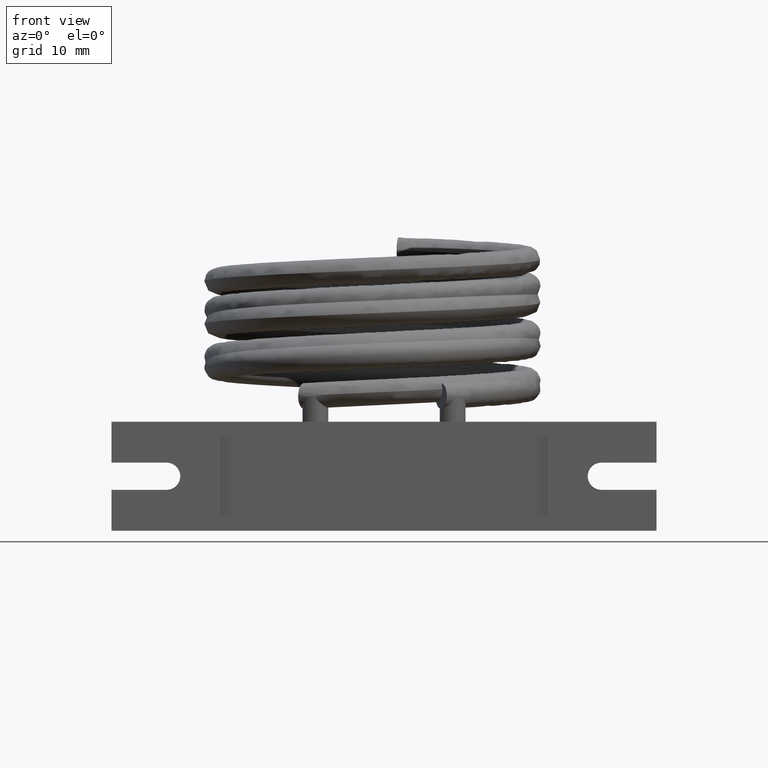
[diagram: clean part render]
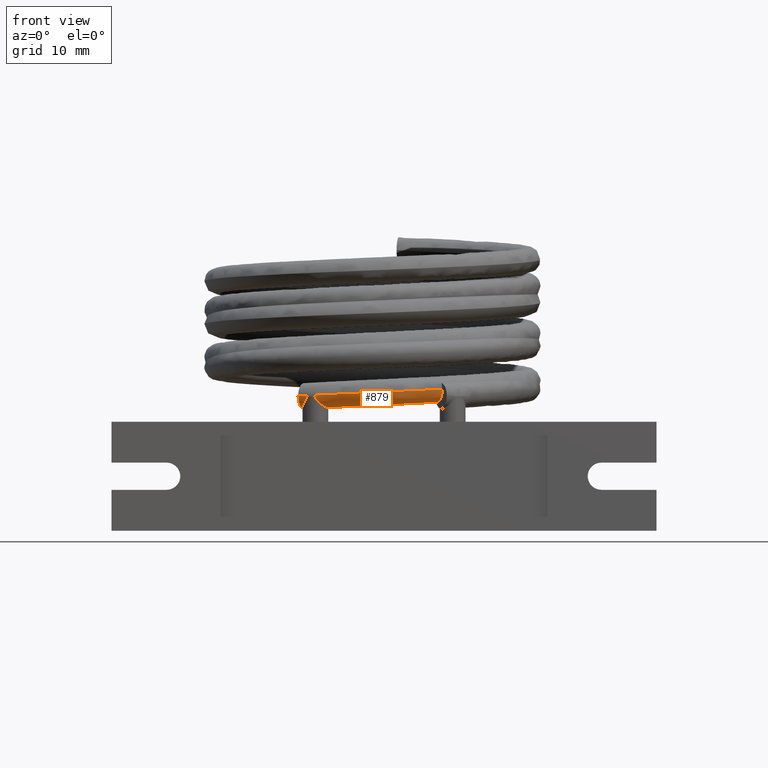
[diagram: same view with one face highlighted and labeled with its STEP entity id]
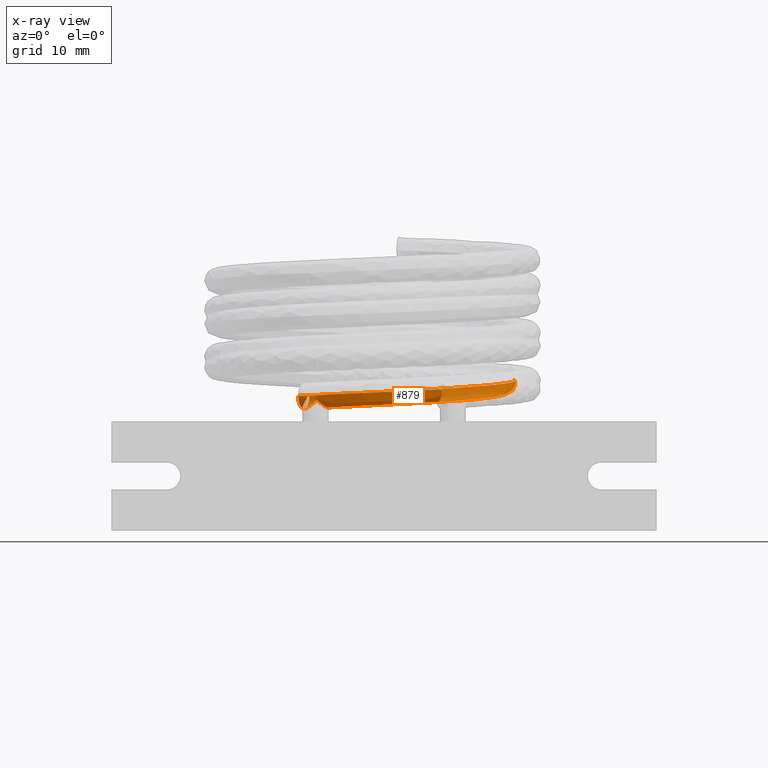
[diagram: x-ray of the same camera — body ghosted, the highlighted face saturated]
A machine part, front view. The second image highlights one B-rep face of the part: STEP entity #879.
The next image is the same camera in x-ray: the body ghosted, the highlighted face saturated — about 0% of this face is hidden behind the body in this view.
In plain terms, the highlighted face is a freeform B-spline surface patch.
Its self-contained STEP definition (entity closure, byte-faithful):
#424=CARTESIAN_POINT('',(6.796506279206343,-15.32938809717489,15.020234560224107));
#425=VERTEX_POINT('',#424);
#437=CARTESIAN_POINT('',(7.765690989006128,-14.743232657820034,15.0809614441658));
#438=VERTEX_POINT('',#437);
#439=CARTESIAN_POINT('',(7.765719428515488,-14.743408756159486,15.08113682678376));
#440=CARTESIAN_POINT('',(7.727906275917158,-14.74938806188041,15.081264615247143));
#441=CARTESIAN_POINT('',(7.690334438825691,-14.756812982539977,15.081371712685307));
#442=CARTESIAN_POINT('',(7.583600744779902,-14.782185853201053,15.081283141788777));
#443=CARTESIAN_POINT('',(7.515403886519026,-14.803638206718759,15.080724597464272));
#444=CARTESIAN_POINT('',(7.414733857348637,-14.843400160406969,15.078343835368148));
#445=CARTESIAN_POINT('',(7.381026749760976,-14.858169521719638,15.077272213209502));
#446=CARTESIAN_POINT('',(7.326326946469616,-14.884575344888978,15.075018931451824));
#447=CARTESIAN_POINT('',(7.30501746633307,-14.89549918535632,15.074007327818791));
#448=CARTESIAN_POINT('',(7.264142178989951,-14.917703943703858,15.071798441041292));
#449=CARTESIAN_POINT('',(7.244556402352882,-14.928923550793996,15.070615605704692));
#450=CARTESIAN_POINT('',(7.19947717808922,-14.956115440945881,15.067603271325678));
#451=CARTESIAN_POINT('',(7.174207335168027,-14.972414727804846,15.065690445182945));
#452=CARTESIAN_POINT('',(7.095774496546441,-15.026408065185191,15.059076859714382));
#453=CARTESIAN_POINT('',(7.044632433277044,-15.066767161114914,15.053724447746969));
#454=CARTESIAN_POINT('',(6.922598205056851,-15.17664870118907,15.039051939284318));
#455=CARTESIAN_POINT('',(6.855757395647398,-15.250055908286221,15.029124024937321));
#456=CARTESIAN_POINT('',(6.796636126300768,-15.329502714981457,15.020398353458935));
#457=B_SPLINE_CURVE_WITH_KNOTS('',3,(#439,#440,#441,#442,#443,#444,#445,#446,#447,#448,#449,#450,#451,#452,#453,#454,#455,#456),.UNSPECIFIED.,.F.,.U.,(4,2,2,2,2,2,2,2,4),(-0.116378923915823,-0.10490897436881,-0.083512592682323,-0.072488571517131,-0.065311624145937,-0.058543437829756,-0.049521266082312,-0.029960611032271,-0.000135880903341),.UNSPECIFIED.);
#458=EDGE_CURVE('',#438,#425,#457,.T.);
#541=CARTESIAN_POINT('',(-10.013475729989661,-16.904547610443771,15.699794977803982));
#542=CARTESIAN_POINT('',(-10.013475730116085,-16.904547610699996,15.699783353149797));
#543=CARTESIAN_POINT('',(-10.013477860737298,-16.904551928882206,15.307965916050971));
#544=CARTESIAN_POINT('',(-9.869855924245572,-16.613469915303646,14.524342666502553));
#545=CARTESIAN_POINT('',(-9.349762599277709,-15.559384334951606,14.037468822512553));
#546=CARTESIAN_POINT('',(-8.82966927430984,-14.50529875459317,14.524342666502553));
#547=CARTESIAN_POINT('',(-8.685988573774495,-14.214097642524294,15.308286541653533));
#548=CARTESIAN_POINT('',(-8.686049520014432,-14.21422116372587,15.700424604354916));
#549=CARTESIAN_POINT('',(-8.686049623278516,-14.214221373013659,15.700756854541682));
#550=CARTESIAN_POINT('',(-8.603376713744718,-17.59999673914583,15.770049651953125));
#551=CARTESIAN_POINT('',(-8.603376713850574,-17.599996739412202,15.770038027298941));
#552=CARTESIAN_POINT('',(-8.603378497870921,-17.600001228535856,15.378220590200113));
#553=CARTESIAN_POINT('',(-8.483120456808999,-17.297396335690266,14.594597340651696));
#554=CARTESIAN_POINT('',(-8.047634026552625,-16.201583337238098,14.107723496661695));
#555=CARTESIAN_POINT('',(-7.612147596296237,-15.105770338784501,14.594597340651696));
#556=CARTESIAN_POINT('',(-7.491840350713155,-14.803041632772105,15.378541215802674));
#557=CARTESIAN_POINT('',(-7.491891382439982,-14.803170043730489,15.770679278504058));
#558=CARTESIAN_POINT('',(-7.491891468905441,-14.803170261303222,15.771011528690824));
#559=CARTESIAN_POINT('',(-5.345798995375704,-18.745714248255446,15.923238072822279));
#560=CARTESIAN_POINT('',(-5.345798995434051,-18.745714248538526,15.923226448168096));
#561=CARTESIAN_POINT('',(-5.345799978742984,-18.745719019272258,15.531409011069266));
#562=CARTESIAN_POINT('',(-5.279516661650067,-18.424130761591574,14.747785761520849));
#563=CARTESIAN_POINT('',(-5.039487097797414,-17.259573937681367,14.26091191753085));
#564=CARTESIAN_POINT('',(-4.799457533944503,-16.095017113761671,14.747785761520849));
#565=CARTESIAN_POINT('',(-4.733147096513232,-15.77329727572147,15.531729636671828));
#566=CARTESIAN_POINT('',(-4.733175223964228,-15.773433742306556,15.923867699373211));
#567=CARTESIAN_POINT('',(-4.733175271621891,-15.773433973528316,15.924199949559977));
#568=CARTESIAN_POINT('',(-0.023009316195609,-19.148195265712175,16.159360240411434));
#569=CARTESIAN_POINT('',(-0.023009316176323,-19.148195266001125,16.159348615757249));
#570=CARTESIAN_POINT('',(-0.023008991144812,-19.148200135671907,15.76753117865842));
#571=CARTESIAN_POINT('',(-0.04491884349161,-18.81994318005,14.98390792911));
#572=CARTESIAN_POINT('',(-0.124260260524,-17.631237222860001,14.497034085120003));
#573=CARTESIAN_POINT('',(-0.2036016775513,-16.442531265669999,14.98390792911));
#574=CARTESIAN_POINT('',(-0.225520494488601,-16.114140001138487,15.767851804260982));
#575=CARTESIAN_POINT('',(-0.225511197001477,-16.114279297597335,16.159989866962363));
#576=CARTESIAN_POINT('',(-0.225511181248307,-16.114279533613885,16.160322117149128));
#577=CARTESIAN_POINT('',(5.479444467118871,-17.982502450442276,16.408161480571426));
#578=CARTESIAN_POINT('',(5.479444467218411,-17.982502450714225,16.408149855917245));
#579=CARTESIAN_POINT('',(5.479446144752151,-17.98250703386006,16.016332418818415));
#580=CARTESIAN_POINT('',(5.366366272906999,-17.673564413419999,15.232709169270002));
#581=CARTESIAN_POINT('',(4.956873907222,-16.554800813579998,14.745835325280003));
#582=CARTESIAN_POINT('',(4.547381541548999,-15.43603721373,15.232709169270002));
#583=CARTESIAN_POINT('',(4.434255402181043,-15.126968187001776,16.016653044420977));
#584=CARTESIAN_POINT('',(4.43430338783735,-15.12709928737976,16.408791107122362));
#585=CARTESIAN_POINT('',(4.434303469141708,-15.127099509509311,16.409123357309127));
#586=CARTESIAN_POINT('',(10.434259846846549,-15.320595546743112,16.656962720731428));
#587=CARTESIAN_POINT('',(10.434259847018355,-15.320595546976238,16.656951096077243));
#588=CARTESIAN_POINT('',(10.434262742440325,-15.320599475826381,16.265133658978414));
#589=CARTESIAN_POINT('',(10.239086658150001,-15.055761924480002,15.481510409430001));
#590=CARTESIAN_POINT('',(9.532302018429,-14.096714539280002,14.99463656544));
#591=CARTESIAN_POINT('',(8.825517378727,-13.137667154069998,15.481510409430001));
#592=CARTESIAN_POINT('',(8.630261436598472,-12.872721242360996,16.265454284580976));
#593=CARTESIAN_POINT('',(8.630344259937806,-12.87283362667805,16.65759234728236));
#594=CARTESIAN_POINT('',(8.630344400269291,-12.87283381709609,16.657924597469126));
#595=CARTESIAN_POINT('',(14.443825770578091,-11.376064533515409,16.905763960891434));
#596=CARTESIAN_POINT('',(14.443825770808376,-11.376064533691004,16.905752336237249));
#597=CARTESIAN_POINT('',(14.443829651780213,-11.376067492968499,16.513934899138416));
#598=CARTESIAN_POINT('',(14.182219169700002,-11.176586777599999,15.730311649590003));
#599=CARTESIAN_POINT('',(13.234857862640004,-10.45421392113,15.243437805600003));
#600=CARTESIAN_POINT('',(12.287496555600001,-9.731841064636999,15.730311649590003));
#601=CARTESIAN_POINT('',(12.025779033518642,-9.532278730177868,16.514255524740978));
#602=CARTESIAN_POINT('',(12.025890048425694,-9.532363380195479,16.906393587442363));
#603=CARTESIAN_POINT('',(12.025890236523477,-9.53236352362199,16.906725837629129));
#604=CARTESIAN_POINT('',(17.186405179426799,-6.465454025315056,17.154565201051426));
#605=CARTESIAN_POINT('',(17.186405179697086,-6.465454025419029,17.154553576397245));
#606=CARTESIAN_POINT('',(17.18640973479642,-6.465455777673317,16.762736139298415));
#607=CARTESIAN_POINT('',(16.87935752289,-6.347338845329,15.979112889750001));
#608=CARTESIAN_POINT('',(15.767439596320001,-5.919605940715,15.492239045759998));
#609=CARTESIAN_POINT('',(14.65552166977,-5.491873036055001,15.979112889750001));
#610=CARTESIAN_POINT('',(14.348343825031662,-5.373707775263901,16.763056764900977));
#611=CARTESIAN_POINT('',(14.34847412321669,-5.373757898406907,17.155194827602362));
#612=CARTESIAN_POINT('',(14.348474343987043,-5.37375798333291,17.155527077789127));
#613=CARTESIAN_POINT('',(18.379900054610452,-1.253535156045539,17.391078373888462));
#614=CARTESIAN_POINT('',(18.379900054898144,-1.253535156073496,17.391066749234277));
#615=CARTESIAN_POINT('',(18.379904903358696,-1.253535627238608,16.999249312135436));
#616=CARTESIAN_POINT('',(18.053077704627686,-1.221774848641177,16.21562606258702));
#617=CARTESIAN_POINT('',(16.869549278320587,-1.106760601339982,15.728752218597021));
#618=CARTESIAN_POINT('',(15.686020852023979,-0.991746353970732,16.21562606258702));
#619=CARTESIAN_POINT('',(15.359059929379137,-0.959972580235351,16.999569937737999));
#620=CARTESIAN_POINT('',(15.35919861911805,-0.959986057981897,17.391708000439387));
#621=CARTESIAN_POINT('',(15.359198854106609,-0.959986080817878,17.392040250626156));
#622=CARTESIAN_POINT('',(18.247404878769164,2.206206469977846,17.544657800005485));
#623=CARTESIAN_POINT('',(18.247404879054923,2.206206470000348,17.5446461753513));
#624=CARTESIAN_POINT('',(18.247409694947493,2.206206849239707,17.15282873825247));
#625=CARTESIAN_POINT('',(17.922777805476766,2.180643255128663,16.369205488704054));
#626=CARTESIAN_POINT('',(16.747199179341315,2.088070664823642,15.882331644714053));
#627=CARTESIAN_POINT('',(15.571620553207326,1.995498074598709,16.369205488704054));
#628=CARTESIAN_POINT('',(15.246855838051216,1.969924020902999,17.153149363855029));
#629=CARTESIAN_POINT('',(15.246993596205813,1.9699348688627,17.545287426556413));
#630=CARTESIAN_POINT('',(15.246993829615944,1.969934887242908,17.545619676743179));
#631=CARTESIAN_POINT('',(17.997166368853168,3.767296249860434,17.61530347940251));
#632=CARTESIAN_POINT('',(17.997166369135282,3.767296249905705,17.615291854748328));
#633=CARTESIAN_POINT('',(17.9971711235176,3.767297012860714,17.223474417649498));
#634=CARTESIAN_POINT('',(17.676685429671629,3.715867761123249,16.439851168101079));
#635=CARTESIAN_POINT('',(16.51612128338936,3.529628728160946,15.952977324111075));
#636=CARTESIAN_POINT('',(15.355557137095035,3.343389695283332,16.439851168101079));
#637=CARTESIAN_POINT('',(15.03494031401814,3.291939400822491,17.223795043252057));
#638=CARTESIAN_POINT('',(15.035076312725309,3.291961224921942,17.615933105953442));
#639=CARTESIAN_POINT('',(15.035076543154329,3.291961261899542,17.616265356140207));
#640=B_SPLINE_SURFACE_WITH_KNOTS('',3,3,((#541,#550,#559,#568,#577,#586,#595,#604,#613,#622,#631),(#542,#551,#560,#569,#578,#587,#596,#605,#614,#623,#632),(#543,#552,#561,#570,#579,#588,#597,#606,#615,#624,#633),(#544,#553,#562,#571,#580,#589,#598,#607,#616,#625,#634),(#545,#554,#563,#572,#581,#590,#599,#608,#617,#626,#635),(#546,#555,#564,#573,#582,#591,#600,#609,#618,#627,#636),(#547,#556,#565,#574,#583,#592,#601,#610,#619,#628,#637),(#548,#557,#566,#575,#584,#593,#602,#611,#620,#629,#638),(#549,#558,#567,#576,#585,#594,#603,#612,#621,#630,#639)),.UNSPECIFIED.,.F.,.F.,.U.,(4,1,1,1,1,1,4),(4,1,1,1,1,1,1,1,4),(0.49999629132155,0.5,0.625,0.75,0.875,1.0,1.000105999657927),(-0.000017135439874,0.0150374375921,0.03280895474641,0.05058047190071,0.06835198905501,0.08612350620932,0.1038950233636,0.1216665405179,0.136804900388703),.UNSPECIFIED.);
#641=CARTESIAN_POINT('',(-10.008657065800396,-16.906923313439059,15.700000075552214));
#642=VERTEX_POINT('',#641);
#643=CARTESIAN_POINT('',(6.787760413800603,-17.158408453478774,16.475749712076322));
#644=VERTEX_POINT('',#643);
#645=CARTESIAN_POINT('',(-10.008657065800394,-16.906923313439059,15.700000075552214));
#646=CARTESIAN_POINT('',(-8.599973358719035,-17.601193468059076,15.770174617149753));
#647=CARTESIAN_POINT('',(-7.107650639469362,-18.125827785129637,15.84034915874728));
#648=CARTESIAN_POINT('',(-5.574265346523432,-18.464828740862622,15.910523700344806));
#649=CARTESIAN_POINT('',(-3.762081302620214,-18.86546654903346,15.993457314718365));
#650=CARTESIAN_POINT('',(-1.892545309392916,-19.00683090758946,16.076390929091929));
#651=CARTESIAN_POINT('',(-0.040701682206478,-18.8832309509847,16.159324543465491));
#652=CARTESIAN_POINT('',(1.811141944978919,-18.759630994380007,16.242258157839007));
#653=CARTESIAN_POINT('',(3.645293206123479,-18.371066722614856,16.325191772212523));
#654=CARTESIAN_POINT('',(5.388171400001554,-17.733133436106087,16.408125386586043));
#655=CARTESIAN_POINT('',(5.861887488719203,-17.559742511594425,16.430666828416136));
#656=CARTESIAN_POINT('',(6.328860706569375,-17.367929251610501,16.453208270246229));
#657=CARTESIAN_POINT('',(6.787760413800603,-17.158408453478774,16.475749712076322));
#658=B_SPLINE_CURVE_WITH_KNOTS('',3,(#645,#646,#647,#648,#649,#650,#651,#652,#653,#654,#655,#656,#657),.UNSPECIFIED.,.F.,.U.,(4,3,3,3,4),(0.000000097384826,0.271380210640132,0.592102414861284,0.912824619082255,0.999997244617491),.UNSPECIFIED.);
#659=EDGE_CURVE('',#642,#644,#658,.T.);
#660=ORIENTED_EDGE('',*,*,#659,.F.);
#661=CARTESIAN_POINT('',(-9.345351362335014,-15.561652641061364,14.200000093067359));
#662=VERTEX_POINT('',#661);
#663=CARTESIAN_POINT('',(-10.00865858231991,-16.906922566021869,15.699999742710256));
#664=CARTESIAN_POINT('',(-10.008658538280507,-16.906922480812486,15.308193960342695));
#665=CARTESIAN_POINT('',(-9.936888573728094,-16.761364025845101,14.916388444053744));
#666=CARTESIAN_POINT('',(-9.814369534799585,-16.512880104362573,14.639339918456658));
#667=CARTESIAN_POINT('',(-9.691859225344363,-16.264413887342744,14.362311132548392));
#668=CARTESIAN_POINT('',(-9.518607104413308,-15.913036933863276,14.200023242317643));
#669=CARTESIAN_POINT('',(-9.345351364354441,-15.561652640068734,14.200000092958476));
#670=B_SPLINE_CURVE_WITH_KNOTS('',3,(#663,#664,#665,#666,#667,#668,#669),.UNSPECIFIED.,.F.,.U.,(4,3,4),(0.000000109452473,0.50001786784207,1.0),.UNSPECIFIED.);
#671=EDGE_CURVE('',#642,#662,#670,.T.);
#672=ORIENTED_EDGE('',*,*,#671,.T.);
#673=CARTESIAN_POINT('',(-9.499999999845581,-16.224978476525845,14.364044183988906));
#674=VERTEX_POINT('',#673);
#675=CARTESIAN_POINT('',(-9.345351360317718,-15.561652642056016,14.200000093176193));
#676=CARTESIAN_POINT('',(-9.398770309123002,-15.669992947600731,14.20000723071025));
#677=CARTESIAN_POINT('',(-9.438181999116976,-15.782990222632717,14.216096223754867));
#678=CARTESIAN_POINT('',(-9.488622056465081,-16.008351851358121,14.274119470428607));
#679=CARTESIAN_POINT('',(-9.499998471735449,-16.118482416363314,14.314697696539778));
#680=CARTESIAN_POINT('',(-9.499999999845581,-16.224978476525838,14.364044183988902));
#681=B_SPLINE_CURVE_WITH_KNOTS('',3,(#675,#676,#677,#678,#679,#680),.UNSPECIFIED.,.F.,.U.,(4,2,4),(-0.071513607458185,-0.035218140400681,-0.000006116166816),.UNSPECIFIED.);
#682=EDGE_CURVE('',#662,#674,#681,.T.);
#683=ORIENTED_EDGE('',*,*,#682,.T.);
#684=CARTESIAN_POINT('',(-8.941502272312135,-17.392684894501564,15.700010305276946));
#685=VERTEX_POINT('',#684);
#686=CARTESIAN_POINT('',(-9.499999999845581,-16.224978476525852,14.364044183988909));
#687=CARTESIAN_POINT('',(-9.500002013031896,-16.365280151351314,14.429054991199056));
#688=CARTESIAN_POINT('',(-9.480262603505111,-16.498567118606882,14.508862897153922));
#689=CARTESIAN_POINT('',(-9.41087509393536,-16.752321128634865,14.694510005232779));
#690=CARTESIAN_POINT('',(-9.359018727561582,-16.871163326716221,14.802639587936632));
#691=CARTESIAN_POINT('',(-9.230153869713785,-17.094250501625343,15.047162692193794));
#692=CARTESIAN_POINT('',(-9.155099068719615,-17.186306639645995,15.176638628851578));
#693=CARTESIAN_POINT('',(-9.058873575106013,-17.288571360789685,15.358259085932122));
#694=CARTESIAN_POINT('',(-9.024185590662958,-17.321565000874379,15.426787596554339));
#695=CARTESIAN_POINT('',(-8.964308383392019,-17.374746713689095,15.575576016069153));
#696=CARTESIAN_POINT('',(-8.947599167683665,-17.387804927135676,15.641509271430472));
#697=CARTESIAN_POINT('',(-8.941595595165532,-17.392646237164694,15.700020610553889));
#698=B_SPLINE_CURVE_WITH_KNOTS('',3,(#686,#687,#688,#689,#690,#691,#692,#693,#694,#695,#696,#697),.UNSPECIFIED.,.F.,.U.,(4,2,2,2,2,4),(-0.111793722815887,-0.088106511129265,-0.062555399069866,-0.033361997378174,-0.017733054481584,-0.000040257311712),.UNSPECIFIED.);
#699=EDGE_CURVE('',#674,#685,#698,.T.);
#700=ORIENTED_EDGE('',*,*,#699,.T.);
#701=CARTESIAN_POINT('',(-8.100933859793628,-17.721486104576741,15.700069699948074));
#702=VERTEX_POINT('',#701);
#703=CARTESIAN_POINT('',(-8.941408949458737,-17.392723551838433,15.700000000000001));
#704=CARTESIAN_POINT('',(-8.802638442334551,-17.450815726462231,15.700000000000001));
#705=CARTESIAN_POINT('',(-8.663182215882832,-17.507269962893144,15.70000000000161));
#706=CARTESIAN_POINT('',(-8.383119252579517,-17.61681754321366,15.70000000000161));
#707=CARTESIAN_POINT('',(-8.242513712744497,-17.66991428584727,15.700000000000001));
#708=CARTESIAN_POINT('',(-8.101302219334999,-17.721347145833008,15.700000000000001));
#709=B_SPLINE_CURVE_WITH_KNOTS('',3,(#703,#704,#705,#706,#707,#708),.UNSPECIFIED.,.F.,.U.,(4,2,4),(0.0,0.045131761626457,0.090217704515042),.UNSPECIFIED.);
#710=EDGE_CURVE('',#685,#702,#709,.T.);
#711=ORIENTED_EDGE('',*,*,#710,.T.);
#712=CARTESIAN_POINT('',(-6.500000000081354,-16.224984377414231,14.406922389134142));
#713=VERTEX_POINT('',#712);
#714=CARTESIAN_POINT('',(-8.100565500252262,-17.721625063320477,15.700139399896143));
#715=CARTESIAN_POINT('',(-8.089085644893771,-17.722396450507052,15.65060837464182));
#716=CARTESIAN_POINT('',(-8.066039750054326,-17.724472152463733,15.587692226250294));
#717=CARTESIAN_POINT('',(-7.972019585174145,-17.725308040005721,15.438110239361764));
#718=CARTESIAN_POINT('',(-7.921855417225628,-17.723845815924882,15.374258587834046));
#719=CARTESIAN_POINT('',(-7.775698522335101,-17.711191557112411,15.204564486386579));
#720=CARTESIAN_POINT('',(-7.656516064521854,-17.691692321676001,15.085863375450948));
#721=CARTESIAN_POINT('',(-7.370304252277395,-17.596183288450458,14.828862835357771));
#722=CARTESIAN_POINT('',(-7.213077158420138,-17.515724601726728,14.704826062344774));
#723=CARTESIAN_POINT('',(-6.942140924406999,-17.300206088373137,14.515591319015142));
#724=CARTESIAN_POINT('',(-6.827563834283947,-17.176714499623891,14.445128431889939));
#725=CARTESIAN_POINT('',(-6.659440673331382,-16.912213979548344,14.363122693344764));
#726=CARTESIAN_POINT('',(-6.600011266453843,-16.782482329883347,14.343549832010696));
#727=CARTESIAN_POINT('',(-6.51943598412073,-16.505620232393351,14.346246996812186));
#728=CARTESIAN_POINT('',(-6.49999854995062,-16.364218441053623,14.368391213248477));
#729=CARTESIAN_POINT('',(-6.500000000081355,-16.224984377414231,14.406922389134142));
#730=B_SPLINE_CURVE_WITH_KNOTS('',3,(#714,#715,#716,#717,#718,#719,#720,#721,#722,#723,#724,#725,#726,#727,#728,#729),.UNSPECIFIED.,.F.,.U.,(4,2,2,2,2,2,2,4),(-0.326192097175795,-0.288731242153423,-0.259365254928089,-0.204969913584453,-0.140817803745153,-0.086622486332023,-0.043347232969477,-0.000006852235156),.UNSPECIFIED.);
#731=EDGE_CURVE('',#702,#713,#730,.T.);
#732=ORIENTED_EDGE('',*,*,#731,.T.);
#733=CARTESIAN_POINT('',(-6.500000000081355,-16.224984377414234,14.406922389134142));
#734=CARTESIAN_POINT('',(-6.500001020138654,-16.127043743783183,14.434026157293673));
#735=CARTESIAN_POINT('',(-6.509596355380579,-16.031639136192581,14.468846239775516));
#736=CARTESIAN_POINT('',(-6.546111393583498,-15.842881239643097,14.552580530611776));
#737=CARTESIAN_POINT('',(-6.573998077275288,-15.75034306779923,14.602093445836053));
#738=CARTESIAN_POINT('',(-6.697329729466653,-15.444857768851346,14.791494799110863));
#739=CARTESIAN_POINT('',(-6.822248894544227,-15.281800613318186,14.943762655657405));
#740=CARTESIAN_POINT('',(-7.014615311523372,-15.088822172020111,15.13915981876459));
#741=CARTESIAN_POINT('',(-7.094472189398573,-15.025461309955194,15.209489338528288));
#742=CARTESIAN_POINT('',(-7.237616736513388,-14.930875549478175,15.303061878375496));
#743=CARTESIAN_POINT('',(-7.289894620241372,-14.902860062291674,15.32489743119492));
#744=CARTESIAN_POINT('',(-7.355348389377101,-14.87035855916208,15.342887562246538));
#745=CARTESIAN_POINT('',(-7.378332370383784,-14.859645177856262,15.347137853302764));
#746=CARTESIAN_POINT('',(-7.411423551132424,-14.84525945047767,15.349802493820931));
#747=CARTESIAN_POINT('',(-7.420921384598715,-14.841246134668122,15.350184092394073));
#748=CARTESIAN_POINT('',(-7.436441965808781,-14.834876320028998,15.350170549434861));
#749=CARTESIAN_POINT('',(-7.442411780400258,-14.832471082596959,15.350013842098551));
#750=CARTESIAN_POINT('',(-7.45497800691984,-14.827501832837298,15.34936617266508));
#751=CARTESIAN_POINT('',(-7.461562966116128,-14.824951685917874,15.348844107568407));
#752=CARTESIAN_POINT('',(-7.477410988164024,-14.81894214485872,15.347155223876847));
#753=CARTESIAN_POINT('',(-7.48664914867714,-14.815543711502833,15.345816687105476));
#754=CARTESIAN_POINT('',(-7.519297884833852,-14.803893554291301,15.339889900610794));
#755=CARTESIAN_POINT('',(-7.54240614946355,-14.796301866732968,15.333516267348543));
#756=CARTESIAN_POINT('',(-7.610358703849381,-14.775724498589671,15.309580693982117));
#757=CARTESIAN_POINT('',(-7.665432687602253,-14.76096609633418,15.283326309476568));
#758=CARTESIAN_POINT('',(-7.831621991927456,-14.731405669282967,15.176728734919045));
#759=CARTESIAN_POINT('',(-7.934818035625529,-14.722328000907837,15.095416837031816));
#760=CARTESIAN_POINT('',(-8.229358855362042,-14.731275412480947,14.856701012921743));
#761=CARTESIAN_POINT('',(-8.462340683917017,-14.772182181947443,14.660696238033664));
#762=CARTESIAN_POINT('',(-8.834935867373069,-14.969976083340523,14.407312839951395));
#763=CARTESIAN_POINT('',(-8.962826121529931,-15.063047046454162,14.33065776255355));
#764=CARTESIAN_POINT('',(-9.13072050163445,-15.236403177803567,14.252479463726061));
#765=CARTESIAN_POINT('',(-9.180673973516155,-15.29640105793634,14.232930526433577));
#766=CARTESIAN_POINT('',(-9.270829985892172,-15.424399006661224,14.206767919166031));
#767=CARTESIAN_POINT('',(-9.310710775390291,-15.491397205750729,14.199995464699592));
#768=CARTESIAN_POINT('',(-9.345351360317716,-15.561652642056014,14.200000093176193));
#769=B_SPLINE_CURVE_WITH_KNOTS('',3,(#733,#734,#735,#736,#737,#738,#739,#740,#741,#742,#743,#744,#745,#746,#747,#748,#749,#750,#751,#752,#753,#754,#755,#756,#757,#758,#759,#760,#761,#762,#763,#764,#765,#766,#767,#768),.UNSPECIFIED.,.F.,.U.,(4,2,2,2,2,2,2,2,2,2,2,2,2,2,2,2,2,4),(-0.606951891959633,-0.577284524280249,-0.545770982800802,-0.466491658078,-0.413624840047907,-0.370202658062854,-0.347510648689281,-0.338437644018869,-0.332781732563319,-0.32656048131032,-0.317827804129736,-0.295684592077239,-0.252005249642047,-0.194699654308967,-0.09956901013253,-0.047614081158874,-0.023500412933793,-0.000001000000787),.UNSPECIFIED.);
#770=EDGE_CURVE('',#713,#662,#769,.T.);
#771=ORIENTED_EDGE('',*,*,#770,.T.);
#772=CARTESIAN_POINT('',(-8.680732246422846,-14.213726888994236,15.700000569756877));
#773=VERTEX_POINT('',#772);
#774=CARTESIAN_POINT('',(-9.345351364351398,-15.561652640067161,14.200000092958573));
#775=CARTESIAN_POINT('',(-9.172070910091888,-15.210218215200461,14.19997694013531));
#776=CARTESIAN_POINT('',(-8.998786835459013,-14.858776448033426,14.362271610749907));
#777=CARTESIAN_POINT('',(-8.87625905130572,-14.610274782557156,14.639339918456773));
#778=CARTESIAN_POINT('',(-8.753740015386414,-14.361790859593174,14.916388444051332));
#779=CARTESIAN_POINT('',(-8.681970022421481,-14.2162323394188,15.30819421763114));
#780=CARTESIAN_POINT('',(-8.681970012810579,-14.216232316449034,15.699999999995125));
#781=B_SPLINE_CURVE_WITH_KNOTS('',3,(#774,#775,#776,#777,#778,#779,#780),.UNSPECIFIED.,.F.,.U.,(4,3,4),(0.0,0.500017850127552,1.0),.UNSPECIFIED.);
#782=EDGE_CURVE('',#662,#773,#781,.T.);
#783=ORIENTED_EDGE('',*,*,#782,.T.);
#784=CARTESIAN_POINT('',(15.038235500334309,3.265348932996468,17.613855903287039));
#785=VERTEX_POINT('',#784);
#786=CARTESIAN_POINT('',(-8.680732246422844,-14.213726888994234,15.700000569756877));
#787=CARTESIAN_POINT('',(-7.68926694677448,-14.703418920484873,15.758347180159335));
#788=CARTESIAN_POINT('',(-6.649557608902088,-15.09480715946669,15.81669377744926));
#789=CARTESIAN_POINT('',(-5.580920306559206,-15.376926067774688,15.875040387849689));
#790=CARTESIAN_POINT('',(-2.803118565015776,-16.110262245636125,16.026705799143244));
#791=CARTESIAN_POINT('',(0.17014243839268,-16.105285460308011,16.178371210436246));
#792=CARTESIAN_POINT('',(2.945681247656421,-15.362177750566971,16.330036621728969));
#793=CARTESIAN_POINT('',(5.72122005692016,-14.619070040825937,16.481702033021691));
#794=CARTESIAN_POINT('',(8.299036672040092,-13.137831406674758,16.633367444314132));
#795=CARTESIAN_POINT('',(10.338790366682991,-11.114226582636013,16.785032855606566));
#796=CARTESIAN_POINT('',(12.378544061325893,-9.090621758597266,16.936698266899004));
#797=CARTESIAN_POINT('',(13.880234835493891,-6.524650744672876,17.088363678191442));
#798=CARTESIAN_POINT('',(14.645489415388592,-3.755184874051287,17.240029089483873));
#799=CARTESIAN_POINT('',(15.274225787363617,-1.479780100854263,17.364638027418259));
#800=CARTESIAN_POINT('',(15.405843093782424,0.932990507691992,17.489246965352653));
#801=CARTESIAN_POINT('',(15.038235500334309,3.265348932996468,17.613855903287039));
#802=B_SPLINE_CURVE_WITH_KNOTS('',3,(#786,#787,#788,#789,#790,#791,#792,#793,#794,#795,#796,#797,#798,#799,#800,#801),.UNSPECIFIED.,.F.,.U.,(4,3,3,3,3,4),(6.849216E-009,0.091459285790471,0.329197331960421,0.566935378130372,0.804673424300323,1.0),.UNSPECIFIED.);
#803=EDGE_CURVE('',#773,#785,#802,.T.);
#804=ORIENTED_EDGE('',*,*,#803,.T.);
#805=CARTESIAN_POINT('',(15.039294448320256,3.265509200071084,17.613902506633849));
#806=CARTESIAN_POINT('',(15.03931671044743,3.265368864773498,17.613879261369327));
#807=CARTESIAN_POINT('',(15.039338971127183,3.265228528604792,17.613856015630049));
#808=CARTESIAN_POINT('',(15.039361230359511,3.265088191565047,17.613832769416074));
#809=CARTESIAN_POINT('',(15.073981836836902,3.046816808454811,17.577677073917382));
#810=CARTESIAN_POINT('',(15.105100421650009,2.826438788194611,17.540367802579343));
#811=CARTESIAN_POINT('',(15.132657905972991,2.604273488897363,17.502092447038038));
#812=CARTESIAN_POINT('',(15.266417890214839,1.525915733712007,17.316309488983816));
#813=CARTESIAN_POINT('',(15.315910484933061,0.405704133610801,17.10676725132344));
#814=CARTESIAN_POINT('',(15.277896662408819,-0.719561617055843,16.89483927608795));
#815=CARTESIAN_POINT('',(15.252066278885675,-1.484179431711089,16.750834266433237));
#816=CARTESIAN_POINT('',(15.186264416669944,-2.251362757049446,16.606331753192595));
#817=CARTESIAN_POINT('',(15.077822006076691,-3.010591916303676,16.472498728170997));
#818=CARTESIAN_POINT('',(15.070452966226414,-3.062184184489432,16.463404307553898));
#819=CARTESIAN_POINT('',(15.062885496291882,-3.113739055998918,16.454357754139465));
#820=CARTESIAN_POINT('',(15.05511773347712,-3.165252910627048,16.445362426915416));
#821=CARTESIAN_POINT('',(14.946926486891094,-3.882750120773292,16.320073371491429));
#822=CARTESIAN_POINT('',(14.799554943071156,-4.592299084148818,16.205257989351853));
#823=CARTESIAN_POINT('',(14.611984131436628,-5.283418505367568,16.103067470882394));
#824=CARTESIAN_POINT('',(14.596277725652394,-5.34128999390267,16.094510458539183));
#825=CARTESIAN_POINT('',(14.580290042546014,-5.399039923886438,16.086037506885894));
#826=CARTESIAN_POINT('',(14.564020397693447,-5.45666774550001,16.077646313335617));
#827=CARTESIAN_POINT('',(14.251386565945079,-6.564030988497835,15.916403027674656));
#828=CARTESIAN_POINT('',(13.834954490504501,-7.626468922695581,15.785638925455789));
#829=CARTESIAN_POINT('',(13.307087778536459,-8.640061084855022,15.67392272283257));
#830=CARTESIAN_POINT('',(13.077387751411278,-9.081123462654647,15.62530966542419));
#831=CARTESIAN_POINT('',(12.826537800961706,-9.512892381574934,15.580257404904438));
#832=CARTESIAN_POINT('',(12.55410699201229,-9.935135919474728,15.537620270285556));
#833=CARTESIAN_POINT('',(12.442551557354136,-10.108036927197221,15.520161143311887));
#834=CARTESIAN_POINT('',(12.32734955975852,-10.279367898622802,15.50311000422462));
#835=CARTESIAN_POINT('',(12.208498286022078,-10.449002915365211,15.486432847338063));
#836=CARTESIAN_POINT('',(11.503121287970107,-11.455779158584951,15.387454666533985));
#837=CARTESIAN_POINT('',(10.682376634376913,-12.38316681019497,15.303382730786655));
#838=CARTESIAN_POINT('',(9.768563653270633,-13.204884378692332,15.227543269721199));
#839=CARTESIAN_POINT('',(9.589655141956303,-13.365762227814937,15.212695236963254));
#840=CARTESIAN_POINT('',(9.407267792154229,-13.522533226278458,15.198174234635468));
#841=CARTESIAN_POINT('',(9.221603900037318,-13.675123291684523,15.183921706990157));
#842=CARTESIAN_POINT('',(8.755941165516738,-14.057833716999314,15.148175009441841));
#843=CARTESIAN_POINT('',(8.269674210760886,-14.414254011279715,15.114110709935485));
#844=CARTESIAN_POINT('',(7.765777197379882,-14.74303842593115,15.081186861600097));
#845=B_SPLINE_CURVE_WITH_KNOTS('',3,(#805,#806,#807,#808,#809,#810,#811,#812,#813,#814,#815,#816,#817,#818,#819,#820,#821,#822,#823,#824,#825,#826,#827,#828,#829,#830,#831,#832,#833,#834,#835,#836,#837,#838,#839,#840,#841,#842,#843,#844),.UNSPECIFIED.,.F.,.U.,(4,3,3,3,3,3,3,3,3,3,3,3,3,4),(0.000082178890272,0.000125371776353,0.067304863394273,0.39338425565196,0.614955126501335,0.630011639612924,0.839722332592145,0.857282640683377,1.194717566583279,1.341551625020523,1.401677486977012,1.758521790608155,1.828385629767408,2.003610796147728),.UNSPECIFIED.);
#846=EDGE_CURVE('',#785,#438,#845,.T.);
#847=ORIENTED_EDGE('',*,*,#846,.T.);
#848=ORIENTED_EDGE('',*,*,#458,.T.);
#849=CARTESIAN_POINT('',(6.073808520009588,-15.710330990363197,14.977923322652416));
#850=VERTEX_POINT('',#849);
#851=CARTESIAN_POINT('',(6.796285748764656,-15.329395326224587,15.02041099494784));
#852=CARTESIAN_POINT('',(6.677392522162985,-15.395869909589633,15.013241936662586));
#853=CARTESIAN_POINT('',(6.557679214241404,-15.46088316819066,15.006117553361531));
#854=CARTESIAN_POINT('',(6.316827638955457,-15.587871569412792,14.991957895163413));
#855=CARTESIAN_POINT('',(6.195690748539988,-15.649850437213846,14.984922499148254));
#856=CARTESIAN_POINT('',(6.073808519592503,-15.710330989588478,14.977923323221013));
#857=B_SPLINE_CURVE_WITH_KNOTS('',3,(#851,#852,#853,#854,#855,#856),.UNSPECIFIED.,.F.,.U.,(4,2,4),(0.0,0.040920995180725,0.081793897621996),.UNSPECIFIED.);
#858=EDGE_CURVE('',#425,#850,#857,.T.);
#859=ORIENTED_EDGE('',*,*,#858,.T.);
#860=CARTESIAN_POINT('',(6.073808520078264,-15.710330990372807,14.977923323154219));
#861=CARTESIAN_POINT('',(6.123605148467472,-15.811324777324662,14.96917465619395));
#862=CARTESIAN_POINT('',(6.173068972285922,-15.911643595006446,14.97379722768768));
#863=CARTESIAN_POINT('',(6.271024933212789,-16.110310528261238,15.00815730417443));
#864=CARTESIAN_POINT('',(6.319240043987082,-16.208096799800369,15.037873780600652));
#865=CARTESIAN_POINT('',(6.442620251153426,-16.458327282459592,15.147466504134481));
#866=CARTESIAN_POINT('',(6.514440960960637,-16.603988659537311,15.247841939187738));
#867=CARTESIAN_POINT('',(6.638379191098935,-16.855350882536534,15.506947347285887));
#868=CARTESIAN_POINT('',(6.686430030826289,-16.952803991858559,15.660321257331784));
#869=CARTESIAN_POINT('',(6.742968312560916,-17.067470694501594,15.927153899950341));
#870=CARTESIAN_POINT('',(6.759576847594095,-17.101154879615759,16.033947879917989));
#871=CARTESIAN_POINT('',(6.781953803837281,-17.146538143996466,16.252322265672664));
#872=CARTESIAN_POINT('',(6.78779812340358,-17.158391154616865,16.363966501443524));
#873=CARTESIAN_POINT('',(6.787798156269473,-17.158391221273003,16.475751951055916));
#874=B_SPLINE_CURVE_WITH_KNOTS('',3,(#860,#861,#862,#863,#864,#865,#866,#867,#868,#869,#870,#871,#872,#873),.UNSPECIFIED.,.F.,.U.,(4,2,2,2,2,2,4),(0.000000033413359,0.033882752508485,0.067867500387713,0.12463454134029,0.18344228228138,0.219482855113957,0.255301622336058),.UNSPECIFIED.);
#875=EDGE_CURVE('',#850,#644,#874,.T.);
#876=ORIENTED_EDGE('',*,*,#875,.T.);
#877=EDGE_LOOP('',(#660,#672,#683,#700,#711,#732,#771,#783,#804,#847,#848,#859,#876));
#878=FACE_OUTER_BOUND('',#877,.T.);
#879=ADVANCED_FACE('',(#878),#640,.T.);